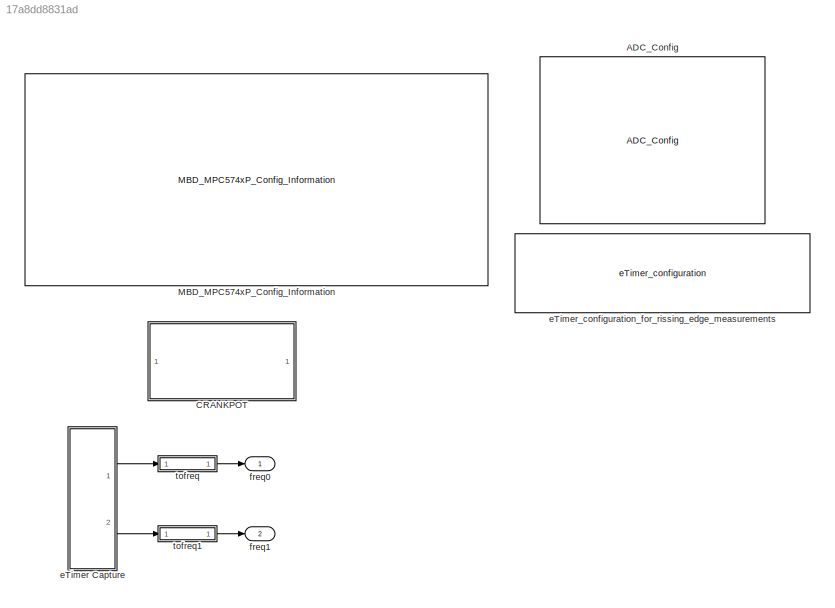
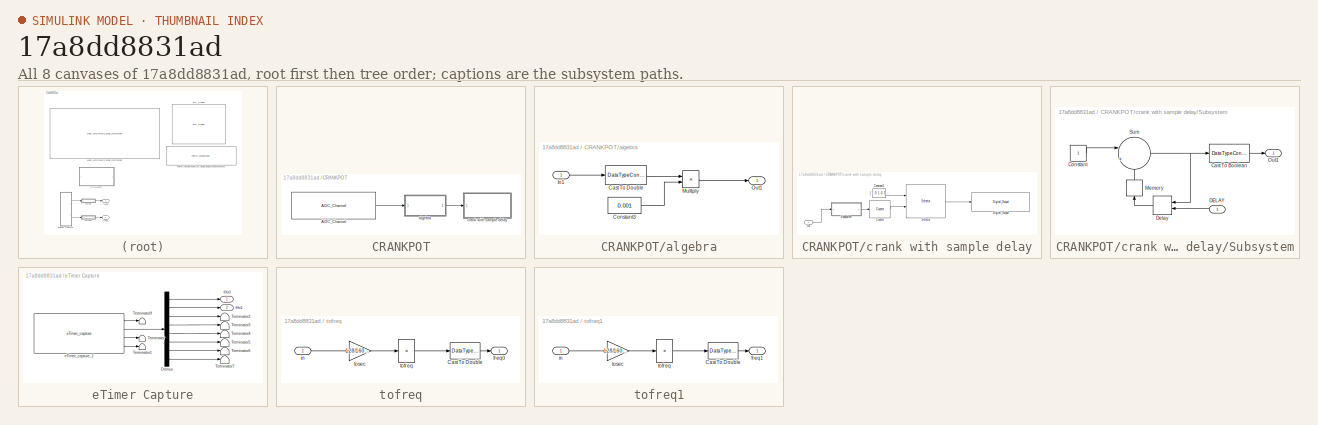
[diagram: thumbnail index - all 8 canvases of the model, root first then tree order]
MODEL slx_17a8dd8831ad
KIND model
CONFIG AbsTol = auto
CONFIG EnableMultiTasking = on
CONFIG FixedStep = 1e-4
CONFIG InitFcn = mbd_pnt_consistency_checks(bdroot(gcs));
CONFIG MaxStep = auto
CONFIG MinStep = auto
CONFIG RelTol = 1e-3
CONFIG SampleTimeConstraint = Unconstrained
CONFIG Solver = FixedStepDiscrete
CONFIG SolverName = FixedStepDiscrete
CONFIG StartTime = 0.0
CONFIG StopTime = 50
BLOCK [Reference] ADC_Config  REF=mbd_pnt_ec_toolbox/MPC574xP/Motor Control Blocks/ADC_Config
  Ports = []
  SourceBlock = mbd_pnt_ec_toolbox/MPC574xP/Motor Control Blocks/ADC_Config
  SourceProductName = Model Based Design Toolbox for MPC574xP
  SourceType = adc_pnt_config_block
BLOCK [SubSystem] CRANKPOT
  Ports = []
  RequestExecContextInheritance = off
BLOCK [Reference] CRANKPOT/ADC_Channel  REF=mbd_pnt_ec_toolbox/MPC574xP/Motor Control Blocks/ADC_Channel
  Ports = [0, 1]
  SourceBlock = mbd_pnt_ec_toolbox/MPC574xP/Motor Control Blocks/ADC_Channel
  SourceProductName = Model Based Design Toolbox for MPC574xP
  SourceType = adc_pnt_channel_block
BLOCK [SubSystem] CRANKPOT/algebra
  Ports = [1, 1]
  RequestExecContextInheritance = off
BLOCK [DataTypeConversion] CRANKPOT/algebra/Cast To Double
  OutDataTypeStr = double
  RndMeth = Floor
  SaturateOnIntegerOverflow = off
BLOCK [Constant] CRANKPOT/algebra/Constant3
  Value = 0.001
BLOCK [Inport] CRANKPOT/algebra/In1
  IconDisplay = Port number
BLOCK [Product] CRANKPOT/algebra/Multiply
  InputSameDT = off
  OutDataTypeStr = Inherit: Inherit via internal rule
  Ports = [2, 1]
  RndMeth = Floor
  SaturateOnIntegerOverflow = off
BLOCK [Outport] CRANKPOT/algebra/Out1
  IconDisplay = Port number
BLOCK [SubSystem] CRANKPOT/crank with sample delay
  Ports = [1]
  RequestExecContextInheritance = off
BLOCK [Constant] CRANKPOT/crank with sample delay/Constant1
  OutDataTypeStr = boolean
  Value = [ 1 0 1 0 1 0 1 0 1 0 1 0 1 0 1 0 1 0 1 0 1 0 1 0 1 0 1 0 1 0 1 0 1 0 1 0 0 0 0 0 1 0 1 0 1 0 1 0 1 0 1 0 1 0 1 0 1 0 1 0 1 0 1 0 1 0 1 0 1 0 1 0 1 0 1 0 0 0 0 0 1 0 1 0 1 0 1 0 1 0 1 0 1 0 1 0 1 0 1 0 1 0 1 0 1 0 1 0 1 0 1 0 1 0 1 0 0 0 0 0 1 0 1 0 1 0 1 0 1 0 1 0 1 0 1 0 1 0 1 0 1 0 1 0 1 0 1 0 1 0 1 0 1 0 1 0 0 0 0 0 1 0 1 0 1 0 1 0 1 0 1 0 1 0 1 0 1 0 1 0 1 0 1 0 1 0 1 0 1 0 1 0 1 0 1 0 0 0 0 ...<+83ch>
BLOCK [Reference] CRANKPOT/crank with sample delay/Counter  REF=dspswit3/Counter
  Ports = [1, 1]
  SourceBlock = dspswit3/Counter
  SourceProductBaseCode = DS
  SourceProductName = DSP System Toolbox
  SourceType = Counter
BLOCK [Reference] CRANKPOT/crank with sample delay/Digital_Output  REF=mbd_pnt_ec_toolbox/MPC574xP/Peripheral Interface Blocks/Digital_Output
  Ports = [1]
  SourceBlock = mbd_pnt_ec_toolbox/MPC574xP/Peripheral Interface Blocks/Digital_Output
  SourceProductName = Model Based Design Toolbox for MPC574xP
  SourceType = GPIO_PNT_Output
BLOCK [Inport] CRANKPOT/crank with sample delay/In1
  IconDisplay = Port number
BLOCK [Selector] CRANKPOT/crank with sample delay/Selector
  IndexMode = Zero-based
  IndexOptions = Index vector (port)
  Indices = [1 3]
  InputPortWidth = 240
  OutputSizes = 1
  Ports = [2, 1]
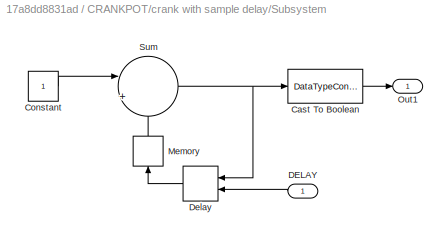
BLOCK [SubSystem] CRANKPOT/crank with sample delay/Subsystem
  Ports = [1, 1]
  RequestExecContextInheritance = off
BLOCK [DataTypeConversion] CRANKPOT/crank with sample delay/Subsystem/Cast To Boolean
  OutDataTypeStr = boolean
  RndMeth = Floor
  SaturateOnIntegerOverflow = off
BLOCK [Constant] CRANKPOT/crank with sample delay/Subsystem/Constant
  OutDataTypeStr = double
BLOCK [Inport] CRANKPOT/crank with sample delay/Subsystem/DELAY
  IconDisplay = Port number
BLOCK [Delay] CRANKPOT/crank with sample delay/Subsystem/Delay
  DelayLengthSource = Input port
  InputPortMap = u0,p1
  Ports = [2, 1]
BLOCK [Memory] CRANKPOT/crank with sample delay/Subsystem/Memory
BLOCK [Outport] CRANKPOT/crank with sample delay/Subsystem/Out1
  IconDisplay = Port number
BLOCK [Sum] CRANKPOT/crank with sample delay/Subsystem/Sum
  IconShape = round
  InputSameDT = off
  Inputs = |+-
  OutDataTypeStr = double
  Ports = [2, 1]
  SaturateOnIntegerOverflow = off
BLOCK [Reference] MBD_MPC574xP_Config_Information  REF=mbd_pnt_ec_toolbox/MPC574xP/MBD_MPC574xP_Config_Information
  Ports = []
  SourceBlock = mbd_pnt_ec_toolbox/MPC574xP/MBD_MPC574xP_Config_Information
  SourceProductName = Model Based Design Toolbox for MPC574xP
  SourceType = MBDTBX_EC_PNT
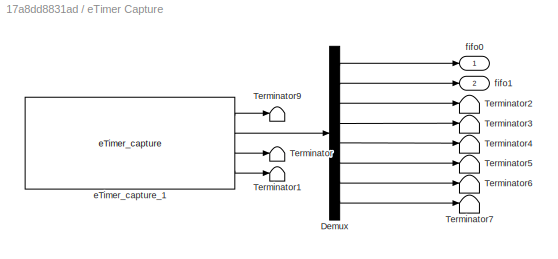
BLOCK [SubSystem] eTimer Capture
  Ports = [0, 2]
  RequestExecContextInheritance = off
BLOCK [Demux] eTimer Capture/Demux
  DisplayOption = bar
  Outputs = 8
  Ports = [1, 8]
BLOCK [Terminator] eTimer Capture/Terminator
BLOCK [Terminator] eTimer Capture/Terminator1
BLOCK [Terminator] eTimer Capture/Terminator2
BLOCK [Terminator] eTimer Capture/Terminator3
BLOCK [Terminator] eTimer Capture/Terminator4
BLOCK [Terminator] eTimer Capture/Terminator5
BLOCK [Terminator] eTimer Capture/Terminator6
BLOCK [Terminator] eTimer Capture/Terminator7
BLOCK [Terminator] eTimer Capture/Terminator9
BLOCK [Reference] eTimer Capture/eTimer_capture_1  REF=mbd_pnt_ec_toolbox/MPC574xP/Motor Control Blocks/eTimer_capture
  Ports = [0, 4]
  SourceBlock = mbd_pnt_ec_toolbox/MPC574xP/Motor Control Blocks/eTimer_capture
  SourceProductName = Model Based Design Toolbox for MPC574xP
  SourceType = eTimer_pnt_capture
BLOCK [Outport] eTimer Capture/fifo0
  IconDisplay = Port number
BLOCK [Outport] eTimer Capture/fifo1
  IconDisplay = Port number
  Port = 2
BLOCK [Reference] eTimer_configuration_for_rissing_edge_measurements  REF=mbd_pnt_ec_toolbox/MPC574xP/Motor Control Blocks/eTimer_configuration
  Ports = []
  SourceBlock = mbd_pnt_ec_toolbox/MPC574xP/Motor Control Blocks/eTimer_configuration
  SourceProductName = Model Based Design Toolbox for MPC574xP
  SourceType = eTimer_pnt_config
BLOCK [Outport] freq0
  IconDisplay = Port number
BLOCK [Outport] freq1
  IconDisplay = Port number
  Port = 2
BLOCK [SubSystem] tofreq
  Ports = [1, 1]
  RequestExecContextInheritance = off
BLOCK [DataTypeConversion] tofreq/Cast To Double
  OutDataTypeStr = double
  RndMeth = Floor
  SaturateOnIntegerOverflow = off
BLOCK [Outport] tofreq/freq0
  IconDisplay = Port number
BLOCK [Inport] tofreq/in
  IconDisplay = Port number
BLOCK [Product] tofreq/tofreq
  InputSameDT = off
  Inputs = /
  OutDataTypeStr = uint16
  Ports = [1, 1]
  RndMeth = Ceiling
  SaturateOnIntegerOverflow = off
BLOCK [Gain] tofreq/tosec
  Gain = 128/160e+6
  OutDataTypeStr = double
  ParamDataTypeStr = Inherit: Inherit via internal rule
  RndMeth = Ceiling
  SaturateOnIntegerOverflow = off
BLOCK [SubSystem] tofreq1
  Ports = [1, 1]
  RequestExecContextInheritance = off
BLOCK [DataTypeConversion] tofreq1/Cast To Double
  OutDataTypeStr = double
  RndMeth = Floor
  SaturateOnIntegerOverflow = off
BLOCK [Outport] tofreq1/freq1
  IconDisplay = Port number
BLOCK [Inport] tofreq1/in
  IconDisplay = Port number
BLOCK [Product] tofreq1/tofreq
  InputSameDT = off
  Inputs = /
  OutDataTypeStr = uint16
  Ports = [1, 1]
  RndMeth = Ceiling
  SaturateOnIntegerOverflow = off
BLOCK [Gain] tofreq1/tosec
  Gain = 128/160e+6
  OutDataTypeStr = double
  ParamDataTypeStr = Inherit: Inherit via internal rule
  RndMeth = Ceiling
  SaturateOnIntegerOverflow = off
LINE CRANKPOT/ADC_Channel:1 -> CRANKPOT/algebra:1
LINE CRANKPOT/algebra/Cast To Double:1 -> CRANKPOT/algebra/Multiply:1
LINE CRANKPOT/algebra/Constant3:1 -> CRANKPOT/algebra/Multiply:2
LINE CRANKPOT/algebra/In1:1 -> CRANKPOT/algebra/Cast To Double:1
LINE CRANKPOT/algebra/Multiply:1 -> CRANKPOT/algebra/Out1:1
LINE CRANKPOT/algebra:1 -> CRANKPOT/crank with sample delay:1
LINE CRANKPOT/crank with sample delay/Constant1:1 -> CRANKPOT/crank with sample delay/Selector:1
LINE CRANKPOT/crank with sample delay/Counter:1 -> CRANKPOT/crank with sample delay/Selector:2
LINE CRANKPOT/crank with sample delay/In1:1 -> CRANKPOT/crank with sample delay/Subsystem:1
LINE CRANKPOT/crank with sample delay/Selector:1 -> CRANKPOT/crank with sample delay/Digital_Output:1
LINE CRANKPOT/crank with sample delay/Subsystem/Cast To Boolean:1 -> CRANKPOT/crank with sample delay/Subsystem/Out1:1
LINE CRANKPOT/crank with sample delay/Subsystem/Constant:1 -> CRANKPOT/crank with sample delay/Subsystem/Sum:1
LINE CRANKPOT/crank with sample delay/Subsystem/DELAY:1 -> CRANKPOT/crank with sample delay/Subsystem/Delay:2
LINE CRANKPOT/crank with sample delay/Subsystem/Delay:1 -> CRANKPOT/crank with sample delay/Subsystem/Memory:1
LINE CRANKPOT/crank with sample delay/Subsystem/Memory:1 -> CRANKPOT/crank with sample delay/Subsystem/Sum:2
NET CRANKPOT/crank with sample delay/Subsystem/Sum:1 -> CRANKPOT/crank with sample delay/Subsystem/Cast To Boolean:1, CRANKPOT/crank with sample delay/Subsystem/Delay:1
LINE CRANKPOT/crank with sample delay/Subsystem:1 -> CRANKPOT/crank with sample delay/Counter:1
LINE eTimer Capture/Demux:1 -> eTimer Capture/fifo0:1
LINE eTimer Capture/Demux:2 -> eTimer Capture/fifo1:1
LINE eTimer Capture/Demux:3 -> eTimer Capture/Terminator2:1
LINE eTimer Capture/Demux:4 -> eTimer Capture/Terminator3:1
LINE eTimer Capture/Demux:5 -> eTimer Capture/Terminator4:1
LINE eTimer Capture/Demux:6 -> eTimer Capture/Terminator5:1
LINE eTimer Capture/Demux:7 -> eTimer Capture/Terminator6:1
LINE eTimer Capture/Demux:8 -> eTimer Capture/Terminator7:1
LINE eTimer Capture/eTimer_capture_1:1 -> eTimer Capture/Terminator9:1
LINE eTimer Capture/eTimer_capture_1:2 -> eTimer Capture/Demux:1
LINE eTimer Capture/eTimer_capture_1:3 -> eTimer Capture/Terminator:1
LINE eTimer Capture/eTimer_capture_1:4 -> eTimer Capture/Terminator1:1
LINE eTimer Capture:1 -> tofreq:1
LINE eTimer Capture:2 -> tofreq1:1
LINE tofreq/Cast To Double:1 -> tofreq/freq0:1
LINE tofreq/in:1 -> tofreq/tosec:1
LINE tofreq/tofreq:1 -> tofreq/Cast To Double:1
LINE tofreq/tosec:1 -> tofreq/tofreq:1
LINE tofreq1/Cast To Double:1 -> tofreq1/freq1:1
LINE tofreq1/in:1 -> tofreq1/tosec:1
LINE tofreq1/tofreq:1 -> tofreq1/Cast To Double:1
LINE tofreq1/tosec:1 -> tofreq1/tofreq:1
LINE tofreq1:1 -> freq1:1
LINE tofreq:1 -> freq0:1
note: NET lines group one-source signal fan-out (src -> all destinations, sorted); 1:1 wires keep LINE
